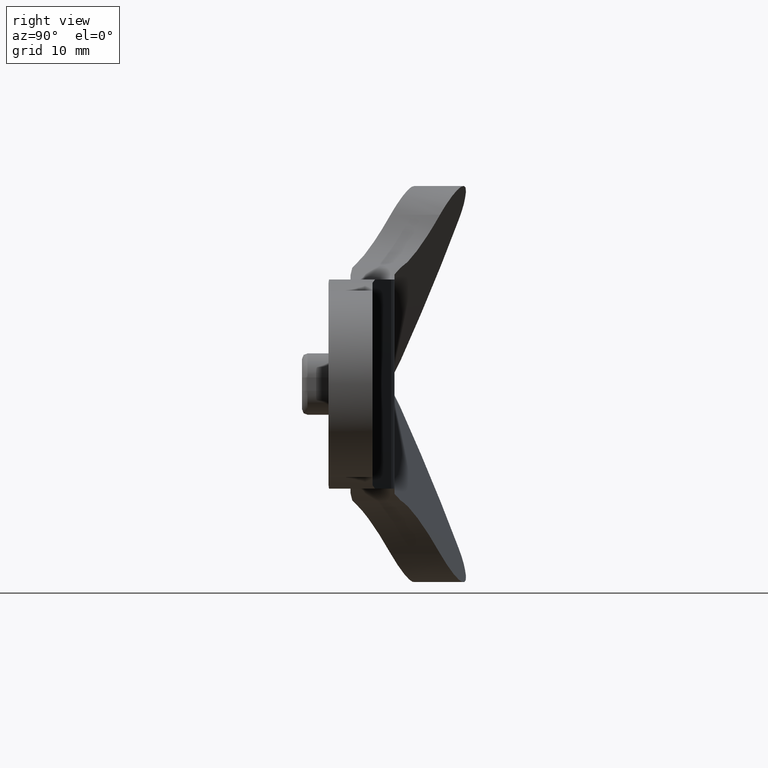
[diagram: clean part render]
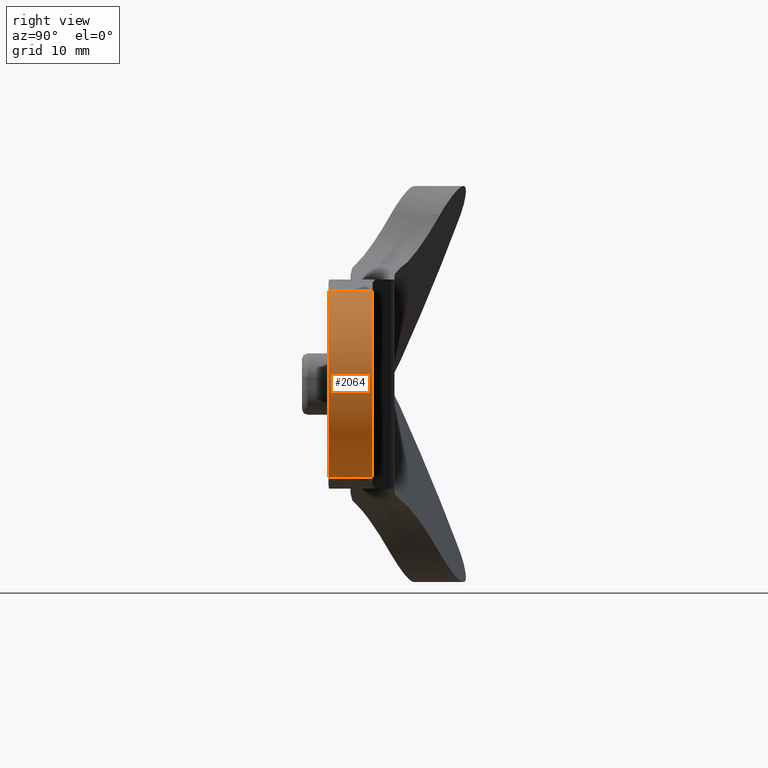
[diagram: same view with one face highlighted and labeled with its STEP entity id]
A machine part, right view. The second image highlights one B-rep face of the part: STEP entity #2064.
In plain terms, the highlighted face is a freeform B-spline surface patch.
Its self-contained STEP definition (entity closure, byte-faithful):
#1882=CARTESIAN_POINT('',(-2.403662459365785,-6.000000190000020,8.153061611739400));
#1883=VERTEX_POINT('',#1882);
#1897=CARTESIAN_POINT('',(-2.403662459365785,-2.0,8.153061611739400));
#1898=VERTEX_POINT('',#1897);
#1899=CARTESIAN_POINT('',(-2.403662459365785,-6.000000190000020,8.153061611739400));
#1900=CARTESIAN_POINT('',(-2.403662459365785,-2.0,8.153061611739400));
#1901=QUASI_UNIFORM_CURVE('',1,(#1899,#1900),.UNSPECIFIED.,.F.,.U.);
#1902=EDGE_CURVE('',#1883,#1898,#1901,.T.);
#1948=CARTESIAN_POINT('',(-2.403662459365770,-6.000000190000020,-8.153061611739521));
#1949=VERTEX_POINT('',#1948);
#1985=CARTESIAN_POINT('',(-2.403662459365770,-2.0,-8.153061611739521));
#1986=VERTEX_POINT('',#1985);
#2000=CARTESIAN_POINT('',(-2.403662459365770,-6.000000190000020,-8.153061611739521));
#2001=CARTESIAN_POINT('',(-2.403662459365770,-2.0,-8.153061611739521));
#2002=QUASI_UNIFORM_CURVE('',1,(#2000,#2001),.UNSPECIFIED.,.F.,.U.);
#2003=EDGE_CURVE('',#1949,#1986,#2002,.T.);
#2008=CARTESIAN_POINT('',(-2.637023765550661,-6.100000194750021,-8.080601000130049));
#2009=CARTESIAN_POINT('',(-2.637023765550661,-1.897499995131249,-8.080601000130049));
#2010=CARTESIAN_POINT('',(8.796762188658711,-6.100000194750021,-11.811903324175525));
#2011=CARTESIAN_POINT('',(8.796762188658711,-1.897499995131250,-11.811903324175525));
#2012=CARTESIAN_POINT('',(8.497366396586815,-6.100000194750021,0.211592026170494));
#2013=CARTESIAN_POINT('',(8.497366396586815,-1.897499995131249,0.211592026170494));
#2014=CARTESIAN_POINT('',(8.197970604514916,-6.100000194750021,12.235087376516510));
#2015=CARTESIAN_POINT('',(8.197970604514916,-1.897499995131250,12.235087376516510));
#2016=CARTESIAN_POINT('',(-3.035934611655800,-6.100000194750021,7.939339260740282));
#2017=CARTESIAN_POINT('',(-3.035934611655800,-1.897499995131249,7.939339260740282));
#2025=(BOUNDED_SURFACE()B_SPLINE_SURFACE(1,2,((#2008,#2010,#2012,#2014,#2016),(#2009,#2011,#2013,#2015,#2017)),.UNSPECIFIED.,.F.,.F.,.U.)B_SPLINE_SURFACE_WITH_KNOTS((2,2),(3,2,3),(0.0,4.202500199618772),(0.0,17.605109770297620,35.210219540595233),.UNSPECIFIED.)GEOMETRIC_REPRESENTATION_ITEM()RATIONAL_B_SPLINE_SURFACE(((1.0,0.577145190037234,1.0,0.577145190037234,1.0),(1.0,0.577145190037234,1.0,0.577145190037234,1.0)))REPRESENTATION_ITEM('')SURFACE());
#2026=ORIENTED_EDGE('',*,*,#1902,.F.);
#2027=CARTESIAN_POINT('',(-2.403662459365770,-6.000000190000020,-8.153061611739521));
#2028=CARTESIAN_POINT('',(3.406595775499973,-6.000000190000020,-9.866025436060022));
#2029=CARTESIAN_POINT('',(6.922094508682767,-6.000000190000020,-4.933012718029994));
#2030=CARTESIAN_POINT('',(10.437593241865560,-6.000000190000020,3.469447E-014));
#2031=CARTESIAN_POINT('',(6.922094508682734,-6.000000190000020,4.933012718030041));
#2032=CARTESIAN_POINT('',(3.406595775499909,-6.000000190000020,9.866025436060044));
#2033=CARTESIAN_POINT('',(-2.403662459365785,-6.000000190000020,8.153061611739400));
#2041=(BOUNDED_CURVE()B_SPLINE_CURVE(2,(#2027,#2028,#2029,#2030,#2031,#2032,#2033),.UNSPECIFIED.,.F.,.U.)B_SPLINE_CURVE_WITH_KNOTS((3,2,2,3),(0.0,0.333333333333333,0.666666666666667,1.0),.UNSPECIFIED.)CURVE()GEOMETRIC_REPRESENTATION_ITEM()RATIONAL_B_SPLINE_CURVE((1.0,0.814364021164814,1.0,0.814364021164814,1.0,0.814364021164814,1.0))REPRESENTATION_ITEM(''));
#2042=EDGE_CURVE('',#1949,#1883,#2041,.T.);
#2043=ORIENTED_EDGE('',*,*,#2042,.F.);
#2044=ORIENTED_EDGE('',*,*,#2003,.T.);
#2045=CARTESIAN_POINT('',(-2.403662459365785,-2.0,8.153061611739400));
#2046=CARTESIAN_POINT('',(3.406595775499920,-2.000000000000000,9.866025436060040));
#2047=CARTESIAN_POINT('',(6.922094508682740,-2.0,4.933012718030031));
#2048=CARTESIAN_POINT('',(10.437593241865560,-2.000000000000000,2.081668E-014));
#2049=CARTESIAN_POINT('',(6.922094508682760,-2.0,-4.933012718030004));
#2050=CARTESIAN_POINT('',(3.406595775499963,-2.000000000000000,-9.866025436060022));
#2051=CARTESIAN_POINT('',(-2.403662459365770,-2.0,-8.153061611739521));
#2059=(BOUNDED_CURVE()B_SPLINE_CURVE(2,(#2045,#2046,#2047,#2048,#2049,#2050,#2051),.UNSPECIFIED.,.F.,.U.)B_SPLINE_CURVE_WITH_KNOTS((3,2,2,3),(0.0,0.333333333333333,0.666666666666667,1.0),.UNSPECIFIED.)CURVE()GEOMETRIC_REPRESENTATION_ITEM()RATIONAL_B_SPLINE_CURVE((1.0,0.814364021164814,1.0,0.814364021164814,1.0,0.814364021164814,1.0))REPRESENTATION_ITEM(''));
#2060=EDGE_CURVE('',#1898,#1986,#2059,.T.);
#2061=ORIENTED_EDGE('',*,*,#2060,.F.);
#2062=EDGE_LOOP('',(#2026,#2043,#2044,#2061));
#2063=FACE_OUTER_BOUND('',#2062,.T.);
#2064=ADVANCED_FACE('',(#2063),#2025,.T.);